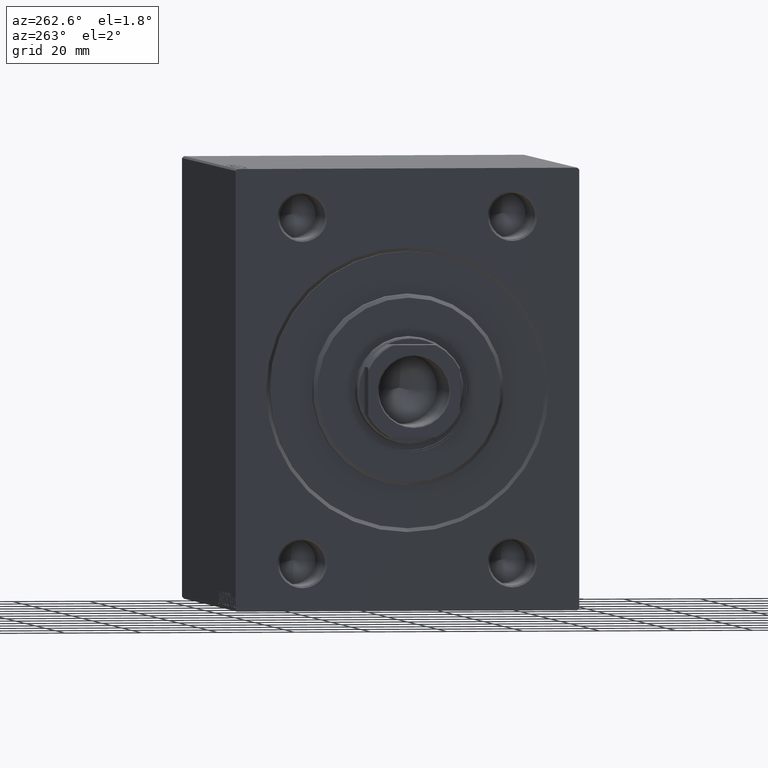
[diagram: clean part render]
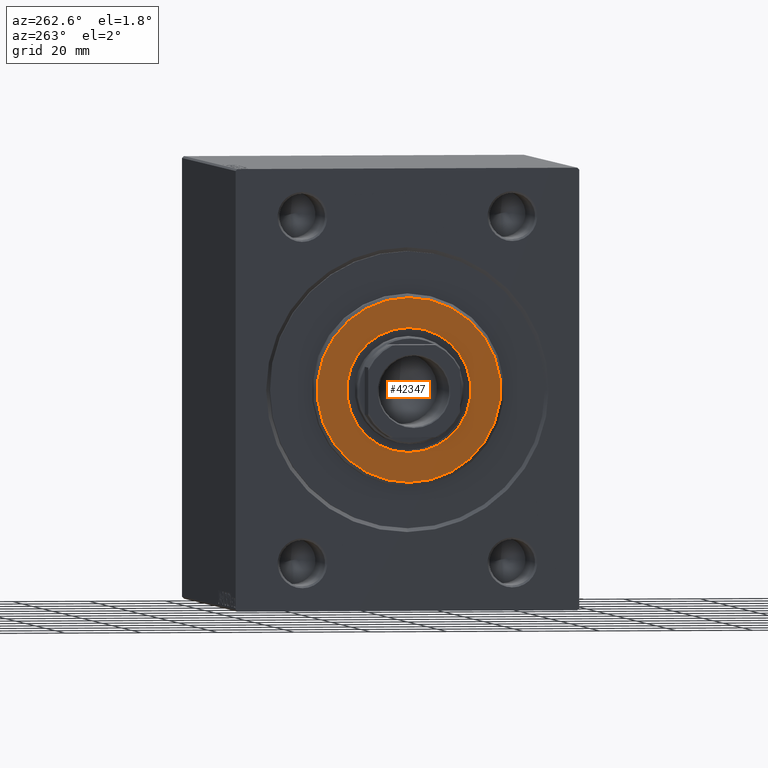
[diagram: same view with one face highlighted and labeled with its STEP entity id]
A machine part, auxiliary view. The second image highlights one B-rep face of the part: STEP entity #42347.
In plain terms, the highlighted planar face has unit normal (-1, 0, 0).
Its self-contained STEP definition (entity closure, byte-faithful):
#597 = CARTESIAN_POINT ( 'NONE',  ( 3.000000000000000000, 0.000000000000000000, 0.000000000000000000 ) ) ;
#1359 = EDGE_LOOP ( 'NONE', ( #27245, #33371 ) ) ;
#1521 = AXIS2_PLACEMENT_3D ( 'NONE', #597, #26960, #3285 ) ;
#2096 = EDGE_CURVE ( 'NONE', #31769, #26661, #18633, .T. ) ;
#3285 = DIRECTION ( 'NONE',  ( 0.000000000000000000, 0.000000000000000000, -1.000000000000000000 ) ) ;
#4894 = CARTESIAN_POINT ( 'NONE',  ( 3.000000000000000000, 0.000000000000000000, 24.00000000000000711 ) ) ;
#5420 = DIRECTION ( 'NONE',  ( 1.000000000000000000, -0.000000000000000000, 0.000000000000000000 ) ) ;
#5759 = DIRECTION ( 'NONE',  ( 1.000000000000000000, -0.000000000000000000, 0.000000000000000000 ) ) ;
#7203 = EDGE_CURVE ( 'NONE', #31109, #18624, #34324, .T. ) ;
#7521 = AXIS2_PLACEMENT_3D ( 'NONE', #26083, #5759, #25438 ) ;
#10875 = EDGE_CURVE ( 'NONE', #18624, #31109, #16704, .T. ) ;
#11808 = FACE_OUTER_BOUND ( 'NONE', #32950, .T. ) ;
#13637 = DIRECTION ( 'NONE',  ( 1.000000000000000000, 0.000000000000000000, 0.000000000000000000 ) ) ;
#14531 = CARTESIAN_POINT ( 'NONE',  ( 3.000000000000000000, 0.000000000000000000, 0.000000000000000000 ) ) ;
#15785 = AXIS2_PLACEMENT_3D ( 'NONE', #35475, #28104, #41734 ) ;
#16704 = CIRCLE ( 'NONE', #38210, 16.25000000000000000 ) ;
#18624 = VERTEX_POINT ( 'NONE', #22036 ) ;
#18633 = CIRCLE ( 'NONE', #15785, 24.00000000000000711 ) ;
#19598 = FACE_BOUND ( 'NONE', #1359, .T. ) ;
#20551 = DIRECTION ( 'NONE',  ( 0.000000000000000000, 0.000000000000000000, -1.000000000000000000 ) ) ;
#22036 = CARTESIAN_POINT ( 'NONE',  ( 3.000000000000000000, 0.000000000000000000, -16.25000000000000000 ) ) ;
#22954 = ORIENTED_EDGE ( 'NONE', *, *, #2096, .T. ) ;
#23978 = ORIENTED_EDGE ( 'NONE', *, *, #40123, .T. ) ;
#25438 = DIRECTION ( 'NONE',  ( 0.000000000000000000, 0.000000000000000000, -1.000000000000000000 ) ) ;
#26083 = CARTESIAN_POINT ( 'NONE',  ( 3.000000000000000000, 0.000000000000000000, 0.000000000000000000 ) ) ;
#26661 = VERTEX_POINT ( 'NONE', #4894 ) ;
#26960 = DIRECTION ( 'NONE',  ( 1.000000000000000000, 0.000000000000000000, 0.000000000000000000 ) ) ;
#27245 = ORIENTED_EDGE ( 'NONE', *, *, #10875, .F. ) ;
#28104 = DIRECTION ( 'NONE',  ( 1.000000000000000000, -0.000000000000000000, 0.000000000000000000 ) ) ;
#30179 = AXIS2_PLACEMENT_3D ( 'NONE', #39142, #5420, #32229 ) ;
#30961 = CARTESIAN_POINT ( 'NONE',  ( 3.000000000000000000, 3.000384657911015469E-15, -24.00000000000000711 ) ) ;
#31109 = VERTEX_POINT ( 'NONE', #43672 ) ;
#31769 = VERTEX_POINT ( 'NONE', #30961 ) ;
#32229 = DIRECTION ( 'NONE',  ( 0.000000000000000000, 0.000000000000000000, -1.000000000000000000 ) ) ;
#32950 = EDGE_LOOP ( 'NONE', ( #23978, #22954 ) ) ;
#33371 = ORIENTED_EDGE ( 'NONE', *, *, #7203, .F. ) ;
#34324 = CIRCLE ( 'NONE', #1521, 16.25000000000000000 ) ;
#35475 = CARTESIAN_POINT ( 'NONE',  ( 3.000000000000000000, 0.000000000000000000, 0.000000000000000000 ) ) ;
#38210 = AXIS2_PLACEMENT_3D ( 'NONE', #14531, #13637, #20551 ) ;
#39142 = CARTESIAN_POINT ( 'NONE',  ( 3.000000000000000000, 0.000000000000000000, 0.000000000000000000 ) ) ;
#40123 = EDGE_CURVE ( 'NONE', #26661, #31769, #40162, .T. ) ;
#40162 = CIRCLE ( 'NONE', #30179, 24.00000000000000711 ) ;
#41734 = DIRECTION ( 'NONE',  ( 0.000000000000000000, 0.000000000000000000, -1.000000000000000000 ) ) ;
#42347 = ADVANCED_FACE ( 'NONE', ( #11808, #19598 ), #42418, .T. ) ;
#42418 = PLANE ( 'NONE',  #7521 ) ;
#43672 = CARTESIAN_POINT ( 'NONE',  ( 3.000000000000000000, 1.990051048614449313E-15, 16.25000000000000000 ) ) ;